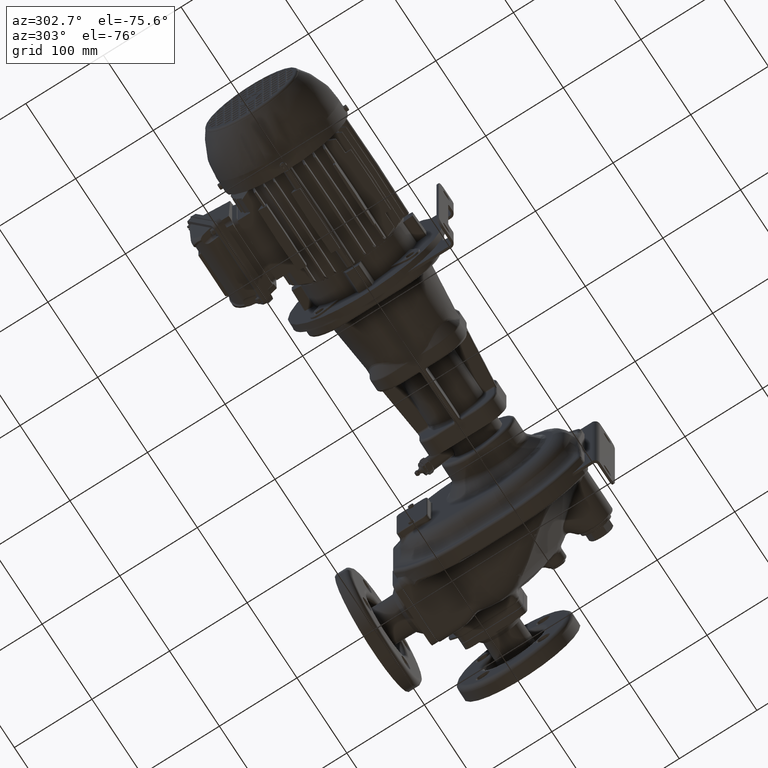
[diagram: clean part render]
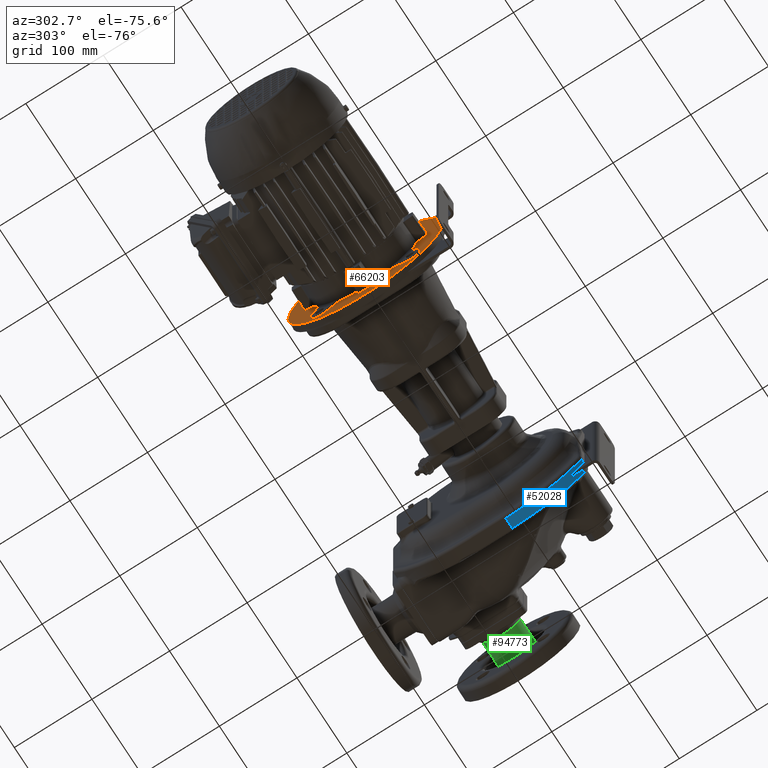
[diagram: same view with three faces highlighted in distinct colors, each labeled with its STEP entity id]
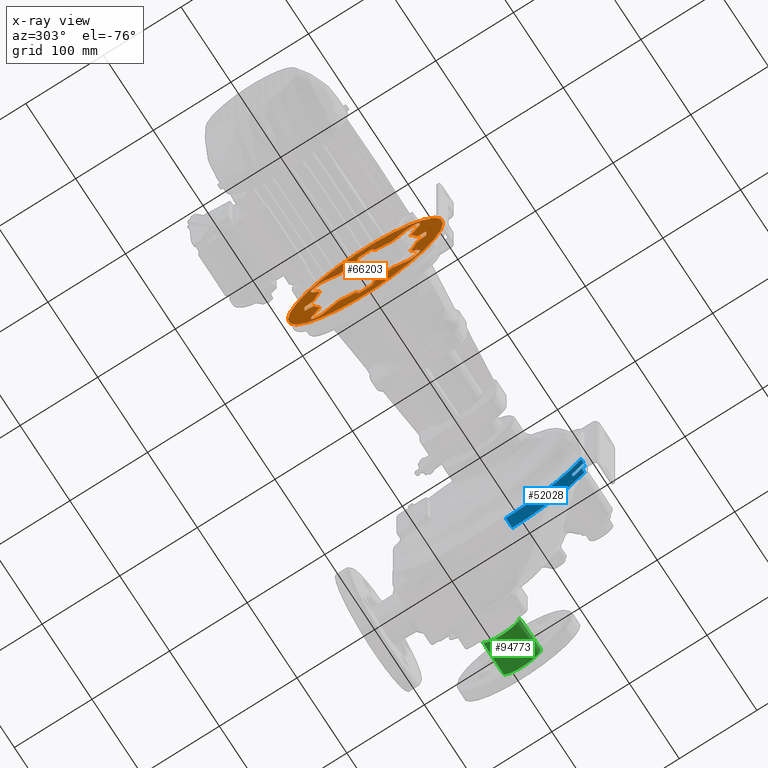
[diagram: x-ray of the same camera — body ghosted, the three highlighted faces saturated]
A machine part, auxiliary view with three faces highlighted in distinct colors.
The next image is the same camera in x-ray (body ghosted, the three faces saturated) — at least one of them is partly hidden behind the body in this view.
Their STEP definitions:

[orange] entity #66203 — the highlighted planar face has unit normal (1, 0, 0).
#13247=CARTESIAN_POINT('',(-3.143E2,1.1E2,0.E0));
#13248=DIRECTION('',(-1.E0,0.E0,0.E0));
#13249=DIRECTION('',(0.E0,1.E0,0.E0));
#13250=AXIS2_PLACEMENT_3D('',#13247,#13248,#13249);
#13252=CARTESIAN_POINT('',(-3.143E2,1.1E2,0.E0));
#13253=DIRECTION('',(-1.E0,0.E0,0.E0));
#13254=DIRECTION('',(0.E0,-1.E0,0.E0));
#13255=AXIS2_PLACEMENT_3D('',#13252,#13253,#13254);
#13257=DIRECTION('',(2.726481860478E-9,2.588190957483E-1,9.659258127186E-1));
#13258=VECTOR('',#13257,8.172830805807E0);
#13259=CARTESIAN_POINT('',(-3.143E2,1.191280612050E2,-7.647114600950E1));
#13260=LINE('',#13259,#13258);
#13261=DIRECTION('',(0.E0,1.E0,0.E0));
#13262=VECTOR('',#13261,1.246255344412E1);
#13263=CARTESIAN_POINT('',(-3.143E2,1.037687232779E2,-7.869392692158E1));
#13264=LINE('',#13263,#13262);
#13265=DIRECTION('',(-2.762342711464E-9,2.588190964110E-1,-9.659258125410E-1));
#13266=VECTOR('',#13265,8.172830805802E0);
#13267=CARTESIAN_POINT('',(-3.142999999774E2,9.875665411076E1,
-6.857679777264E1));
#13268=LINE('',#13267,#13266);
#13269=CARTESIAN_POINT('',(-3.143E2,1.1E2,0.E0));
#13270=DIRECTION('',(1.E0,0.E0,0.E0));
#13271=DIRECTION('',(0.E0,-5.039168477127E-1,-8.637521696594E-1));
#13272=AXIS2_PLACEMENT_3D('',#13269,#13270,#13271);
#13274=DIRECTION('',(-3.467432539896E-14,8.660254037844E-1,5.E-1));
#13275=VECTOR('',#13274,2.131157381400E1);
#13276=CARTESIAN_POINT('',(-3.143E2,5.766369055211E1,-6.872861429330E1));
#13277=LINE('',#13276,#13275);
#13278=DIRECTION('',(3.467432539896E-14,-5.E-1,-8.660254037844E-1));
#13279=VECTOR('',#13278,2.131157381400E1);
#13280=CARTESIAN_POINT('',(-3.143E2,5.192717261369E1,-3.387994513034E1));
#13281=LINE('',#13280,#13279);
#13282=CARTESIAN_POINT('',(-3.143E2,1.1E2,0.E0));
#13283=DIRECTION('',(1.E0,0.E0,0.E0));
#13284=DIRECTION('',(0.E0,-9.772557285621E-1,-2.120642378916E-1));
#13285=AXIS2_PLACEMENT_3D('',#13282,#13283,#13284);
#13287=DIRECTION('',(2.726481860478E-9,9.659258127186E-1,-2.588190957482E-1));
#13288=VECTOR('',#13287,8.172830805807E0);
#13289=CARTESIAN_POINT('',(-3.143E2,3.352885399050E1,-9.128061204961E0));
#13290=LINE('',#13289,#13288);
#13291=DIRECTION('',(0.E0,0.E0,-1.E0));
#13292=VECTOR('',#13291,1.246255344412E1);
#13293=CARTESIAN_POINT('',(-3.143E2,3.130607307842E1,6.231276722062E0));
#13294=LINE('',#13293,#13292);
#13295=DIRECTION('',(-2.762356621802E-9,-9.659258125410E-1,-2.588190964110E-1));
#13296=VECTOR('',#13295,8.172830805802E0);
#13297=CARTESIAN_POINT('',(-3.142999999774E2,4.142320222736E1,
1.124334588924E1));
#13298=LINE('',#13297,#13296);
#13299=CARTESIAN_POINT('',(-3.143E2,1.1E2,0.E0));
#13300=DIRECTION('',(1.E0,0.E0,0.E0));
#13301=DIRECTION('',(0.E0,-8.637521696594E-1,5.039168477127E-1));
#13302=AXIS2_PLACEMENT_3D('',#13299,#13300,#13301);
#13304=DIRECTION('',(-3.467432539896E-14,5.E-1,-8.660254037844E-1));
#13305=VECTOR('',#13304,2.131157381400E1);
#13306=CARTESIAN_POINT('',(-3.143E2,4.127138570670E1,5.233630944789E1));
#13307=LINE('',#13306,#13305);
#13308=DIRECTION('',(3.467432539896E-14,-8.660254037844E-1,5.E-1));
#13309=VECTOR('',#13308,2.131157381400E1);
#13310=CARTESIAN_POINT('',(-3.143E2,7.612005486966E1,5.807282738631E1));
#13311=LINE('',#13310,#13309);
#13312=CARTESIAN_POINT('',(-3.143E2,1.1E2,0.E0));
#13313=DIRECTION('',(1.E0,0.E0,0.E0));
#13314=DIRECTION('',(0.E0,-2.120642378916E-1,9.772557285621E-1));
#13315=AXIS2_PLACEMENT_3D('',#13312,#13313,#13314);
#13317=DIRECTION('',(2.908630779498E-9,-2.588190991145E-1,-9.659258118166E-1));
#13318=VECTOR('',#13317,8.172830805784E0);
#13319=CARTESIAN_POINT('',(-3.143E2,1.008719387950E2,7.647114600950E1));
#13320=LINE('',#13319,#13318);
#13321=DIRECTION('',(0.E0,-1.E0,0.E0));
#13322=VECTOR('',#13321,1.246255344412E1);
#13323=CARTESIAN_POINT('',(-3.143E2,1.162312767221E2,7.869392692158E1));
#13324=LINE('',#13323,#13322);
#13325=DIRECTION('',(-2.946863343088E-9,-2.588190998214E-1,9.659258116272E-1));
#13326=VECTOR('',#13325,8.172830805779E0);
#13327=CARTESIAN_POINT('',(-3.142999999759E2,1.212433459171E2,
6.857679778013E1));
#13328=LINE('',#13327,#13326);
#13329=CARTESIAN_POINT('',(-3.143E2,1.1E2,0.E0));
#13330=DIRECTION('',(1.E0,0.E0,0.E0));
#13331=DIRECTION('',(0.E0,5.039168477127E-1,8.637521696594E-1));
#13332=AXIS2_PLACEMENT_3D('',#13329,#13330,#13331);
#13334=DIRECTION('',(-3.467432539896E-14,-8.660254037844E-1,-5.E-1));
#13335=VECTOR('',#13334,2.131157381400E1);
#13336=CARTESIAN_POINT('',(-3.143E2,1.623363094479E2,6.872861429330E1));
#13337=LINE('',#13336,#13335);
#13338=CARTESIAN_POINT('',(-3.143E2,1.683363094479E2,5.833630944789E1));
#13339=DIRECTION('',(1.E0,0.E0,0.E0));
#13340=DIRECTION('',(0.E0,8.660254037844E-1,-5.E-1));
#13341=AXIS2_PLACEMENT_3D('',#13338,#13339,#13340);
#13343=DIRECTION('',(3.467432539896E-14,5.E-1,8.660254037844E-1));
#13344=VECTOR('',#13343,2.131157381400E1);
#13345=CARTESIAN_POINT('',(-3.143E2,1.680728273863E2,3.387994513034E1));
#13346=LINE('',#13345,#13344);
#13347=CARTESIAN_POINT('',(-3.143E2,1.1E2,0.E0));
#13348=DIRECTION('',(1.E0,0.E0,0.E0));
#13349=DIRECTION('',(0.E0,9.772557285621E-1,2.120642378916E-1));
#13350=AXIS2_PLACEMENT_3D('',#13347,#13348,#13349);
#13352=DIRECTION('',(2.908623824329E-9,-9.659258118166E-1,2.588190991145E-1));
#13353=VECTOR('',#13352,8.172830805784E0);
#13354=CARTESIAN_POINT('',(-3.143E2,1.864711460095E2,9.128061204961E0));
#13355=LINE('',#13354,#13353);
#13356=DIRECTION('',(0.E0,0.E0,1.E0));
#13357=VECTOR('',#13356,1.246255344412E1);
#13358=CARTESIAN_POINT('',(-3.143E2,1.886939269216E2,-6.231276722062E0));
#13359=LINE('',#13358,#13357);
#13360=DIRECTION('',(-2.946870298257E-9,9.659258116272E-1,2.588190998214E-1));
#13361=VECTOR('',#13360,8.172830805779E0);
#13362=CARTESIAN_POINT('',(-3.142999999759E2,1.785767977801E2,
-1.124334591711E1));
#13363=LINE('',#13362,#13361);
#13364=CARTESIAN_POINT('',(-3.143E2,1.1E2,0.E0));
#13365=DIRECTION('',(1.E0,0.E0,0.E0));
#13366=DIRECTION('',(0.E0,8.637521696594E-1,-5.039168477127E-1));
#13367=AXIS2_PLACEMENT_3D('',#13364,#13365,#13366);
#13369=DIRECTION('',(-3.467432539896E-14,-5.E-1,8.660254037844E-1));
#13370=VECTOR('',#13369,2.131157381400E1);
#13371=CARTESIAN_POINT('',(-3.143E2,1.787286142933E2,-5.233630944789E1));
#13372=LINE('',#13371,#13370);
#13373=CARTESIAN_POINT('',(-3.143E2,1.683363094479E2,-5.833630944789E1));
#13374=DIRECTION('',(1.E0,0.E0,0.E0));
#13375=DIRECTION('',(0.E0,1.E0,0.E0));
#13376=AXIS2_PLACEMENT_3D('',#13373,#13374,#13375);
#13378=CARTESIAN_POINT('',(-3.143E2,1.683363094479E2,-5.833630944789E1));
#13379=DIRECTION('',(1.E0,0.E0,0.E0));
#13380=DIRECTION('',(0.E0,-5.E-1,-8.660254037845E-1));
#13381=AXIS2_PLACEMENT_3D('',#13378,#13379,#13380);
#13383=DIRECTION('',(3.467432539896E-14,8.660254037844E-1,-5.E-1));
#13384=VECTOR('',#13383,2.131157381400E1);
#13385=CARTESIAN_POINT('',(-3.143E2,1.438799451303E2,-5.807282738631E1));
#13386=LINE('',#13385,#13384);
#13387=CARTESIAN_POINT('',(-3.143E2,1.1E2,0.E0));
#13388=DIRECTION('',(1.E0,0.E0,0.E0));
#13389=DIRECTION('',(0.E0,2.120642378916E-1,-9.772557285621E-1));
#13390=AXIS2_PLACEMENT_3D('',#13387,#13388,#13389);
#13400=CARTESIAN_POINT('',(-3.142999999141E2,1.242577580395E2,
-6.570403361648E1));
#13401=CARTESIAN_POINT('',(-3.142999999141E2,1.242006414080E2,
-6.571642791896E1));
#13402=CARTESIAN_POINT('',(-3.143000000398E2,1.240870784917E2,
-6.574368206670E1));
#13403=CARTESIAN_POINT('',(-3.142999999893E2,1.239185990177E2,
-6.579202191922E1));
#13404=CARTESIAN_POINT('',(-3.143000000029E2,1.237524312909E2,
-6.584768128402E1));
#13405=CARTESIAN_POINT('',(-3.142999999992E2,1.235888598415E2,
-6.591056542109E1));
#13406=CARTESIAN_POINT('',(-3.143000000002E2,1.234282064869E2,
-6.598055025540E1));
#13407=CARTESIAN_POINT('',(-3.142999999999E2,1.232707761141E2,
-6.605750241541E1));
#13408=CARTESIAN_POINT('',(-3.143E2,1.231168704967E2,-6.614127417698E1));
#13409=CARTESIAN_POINT('',(-3.143E2,1.229667837984E2,-6.623170519667E1));
#13410=CARTESIAN_POINT('',(-3.143E2,1.228208033780E2,-6.632862231941E1));
#13411=CARTESIAN_POINT('',(-3.143E2,1.226792116690E2,-6.643183772812E1));
#13412=CARTESIAN_POINT('',(-3.143E2,1.225422787106E2,-6.654115408964E1));
#13413=CARTESIAN_POINT('',(-3.143E2,1.224102664809E2,-6.665636202240E1));
#13414=CARTESIAN_POINT('',(-3.143E2,1.222834273787E2,-6.677724110355E1));
#13415=CARTESIAN_POINT('',(-3.143E2,1.221620040464E2,-6.690356009447E1));
#13416=CARTESIAN_POINT('',(-3.143E2,1.220462287942E2,-6.703507748948E1));
#13417=CARTESIAN_POINT('',(-3.143E2,1.219363233633E2,-6.717154168448E1));
#13418=CARTESIAN_POINT('',(-3.143E2,1.218324978487E2,-6.731269244222E1));
#13419=CARTESIAN_POINT('',(-3.143E2,1.217349534334E2,-6.745825669576E1));
#13420=CARTESIAN_POINT('',(-3.143E2,1.216438768894E2,-6.760795574572E1));
#13421=CARTESIAN_POINT('',(-3.143000000001E2,1.215594425506E2,
-6.776150348113E1));
#13422=CARTESIAN_POINT('',(-3.142999999998E2,1.214818124014E2,
-6.791860556039E1));
#13423=CARTESIAN_POINT('',(-3.143000000007E2,1.214111346439E2,
-6.807896393835E1));
#13424=CARTESIAN_POINT('',(-3.142999999972E2,1.213475475E2,-6.824226284922E1));
#13425=CARTESIAN_POINT('',(-3.143000000103E2,1.212911637273E2,
-6.840822371175E1));
#13426=CARTESIAN_POINT('',(-3.142999999777E2,1.212584726939E2,
-6.852034323261E1));
#13427=CARTESIAN_POINT('',(-3.142999999777E2,1.212433458838E2,
-6.857679777119E1));
#13462=CARTESIAN_POINT('',(-3.142999999141E2,4.429596638351E1,
-1.425775803951E1));
#13474=CARTESIAN_POINT('',(-3.143E2,5.192717261369E1,-3.387994513034E1));
#13476=CARTESIAN_POINT('',(-3.143E2,7.612005486966E1,-5.807282738631E1));
#13638=CARTESIAN_POINT('',(-3.143E2,1.864711460095E2,9.128061204961E0));
#13639=CARTESIAN_POINT('',(-3.143E2,1.865637618808E2,9.103244857030E0));
#13640=CARTESIAN_POINT('',(-3.143E2,1.867398706276E2,9.046611840194E0));
#13641=CARTESIAN_POINT('',(-3.143E2,1.869814553630E2,8.944337310981E0));
#13642=CARTESIAN_POINT('',(-3.143E2,1.872035578210E2,8.827113504552E0));
#13643=CARTESIAN_POINT('',(-3.143E2,1.874082946777E2,8.696564603562E0));
#13644=CARTESIAN_POINT('',(-3.143E2,1.875971307758E2,8.553814621358E0));
#13645=CARTESIAN_POINT('',(-3.143E2,1.878290290081E2,8.348224371363E0));
#13646=CARTESIAN_POINT('',(-3.143E2,1.880833786685E2,8.063978702568E0));
#13647=CARTESIAN_POINT('',(-3.143E2,1.882921083648E2,7.744727604093E0));
#13648=CARTESIAN_POINT('',(-3.143E2,1.884306736178E2,7.467520440271E0));
#13649=CARTESIAN_POINT('',(-3.143E2,1.885196851338E2,7.248172362113E0));
#13650=CARTESIAN_POINT('',(-3.143E2,1.885927958911E2,7.016623202741E0));
#13651=CARTESIAN_POINT('',(-3.143E2,1.886485410471E2,6.771748948807E0));
#13652=CARTESIAN_POINT('',(-3.143E2,1.886848039257E2,6.511925417658E0));
#13653=CARTESIAN_POINT('',(-3.143E2,1.886939269216E2,6.327159727585E0));
#13654=CARTESIAN_POINT('',(-3.143E2,1.886939269216E2,6.231276722062E0));
#13682=CARTESIAN_POINT('',(-3.142999999126E2,1.757040336447E2,
1.425775804565E1));
#13683=CARTESIAN_POINT('',(-3.142999999126E2,1.757164279474E2,
1.420064141313E1));
#13684=CARTESIAN_POINT('',(-3.143000000405E2,1.757436820542E2,
1.408707848644E1));
#13685=CARTESIAN_POINT('',(-3.142999999891E2,1.757920219232E2,
1.391859901687E1));
#13686=CARTESIAN_POINT('',(-3.143000000029E2,1.758476812836E2,
1.375243128917E1));
#13687=CARTESIAN_POINT('',(-3.142999999992E2,1.759105654219E2,
1.358885984021E1));
#13688=CARTESIAN_POINT('',(-3.143000000002E2,1.759805502559E2,
1.342820648568E1));
#13689=CARTESIAN_POINT('',(-3.142999999999E2,1.760575024159E2,
1.327077611308E1));
#13690=CARTESIAN_POINT('',(-3.143E2,1.761412741775E2,1.311687049589E1));
#13691=CARTESIAN_POINT('',(-3.143E2,1.762317051971E2,1.296678379773E1));
#13692=CARTESIAN_POINT('',(-3.143E2,1.763286223198E2,1.282080337751E1));
#13693=CARTESIAN_POINT('',(-3.143E2,1.764318377284E2,1.267921166861E1));
#13694=CARTESIAN_POINT('',(-3.143E2,1.765411540898E2,1.254227871038E1));
#13695=CARTESIAN_POINT('',(-3.143E2,1.766563620225E2,1.241026648084E1));
#13696=CARTESIAN_POINT('',(-3.143E2,1.767772411035E2,1.228342737873E1));
#13697=CARTESIAN_POINT('',(-3.143E2,1.769035600943E2,1.216200404658E1));
#13698=CARTESIAN_POINT('',(-3.143E2,1.770350774892E2,1.204622879442E1));
#13699=CARTESIAN_POINT('',(-3.143E2,1.771715416840E2,1.193632336366E1));
#13700=CARTESIAN_POINT('',(-3.143E2,1.773126924416E2,1.183249784916E1));
#13701=CARTESIAN_POINT('',(-3.143E2,1.774582566950E2,1.173495343394E1));
#13702=CARTESIAN_POINT('',(-3.143E2,1.776079557448E2,1.164387688995E1));
#13703=CARTESIAN_POINT('',(-3.143000000001E2,1.777615034800E2,
1.155944255116E1));
#13704=CARTESIAN_POINT('',(-3.142999999998E2,1.779186055592E2,
1.148181240227E1));
#13705=CARTESIAN_POINT('',(-3.143000000008E2,1.780789639366E2,
1.141113464362E1));
#13706=CARTESIAN_POINT('',(-3.142999999970E2,1.782422628486E2,
1.134754750403E1));
#13707=CARTESIAN_POINT('',(-3.143000000110E2,1.784082237060E2,
1.129116371525E1));
#13708=CARTESIAN_POINT('',(-3.142999999762E2,1.785203432390E2,
1.125847272163E1));
#13709=CARTESIAN_POINT('',(-3.142999999762E2,1.785767977786E2,
1.124334591133E1));
#13740=CARTESIAN_POINT('',(-3.143E2,1.886939269216E2,-6.231276722062E0));
#13741=CARTESIAN_POINT('',(-3.143E2,1.886939269216E2,-6.327159727585E0));
#13742=CARTESIAN_POINT('',(-3.143E2,1.886848039257E2,-6.511925417658E0));
#13743=CARTESIAN_POINT('',(-3.143E2,1.886485410471E2,-6.771748948807E0));
#13744=CARTESIAN_POINT('',(-3.143E2,1.885927958911E2,-7.016623202741E0));
#13745=CARTESIAN_POINT('',(-3.143E2,1.885196851338E2,-7.248172362113E0));
#13746=CARTESIAN_POINT('',(-3.143E2,1.884306736178E2,-7.467520440271E0));
#13747=CARTESIAN_POINT('',(-3.143E2,1.882921083648E2,-7.744727604093E0));
#13748=CARTESIAN_POINT('',(-3.143E2,1.880833786685E2,-8.063978702568E0));
#13749=CARTESIAN_POINT('',(-3.143E2,1.878290290081E2,-8.348224371364E0));
#13750=CARTESIAN_POINT('',(-3.143E2,1.875971307758E2,-8.553814621358E0));
#13751=CARTESIAN_POINT('',(-3.143E2,1.874082946777E2,-8.696564603562E0));
#13752=CARTESIAN_POINT('',(-3.143E2,1.872035578210E2,-8.827113504553E0));
#13753=CARTESIAN_POINT('',(-3.143E2,1.869814553630E2,-8.944337310982E0));
#13754=CARTESIAN_POINT('',(-3.143E2,1.867398706276E2,-9.046611840195E0));
#13755=CARTESIAN_POINT('',(-3.143E2,1.865637618808E2,-9.103244857030E0));
#13756=CARTESIAN_POINT('',(-3.143E2,1.864711460095E2,-9.128061204961E0));
#13813=CARTESIAN_POINT('',(-3.142999999759E2,1.785767977801E2,
-1.124334591711E1));
#13814=CARTESIAN_POINT('',(-3.142999999759E2,1.785203432406E2,
-1.125847272741E1));
#13815=CARTESIAN_POINT('',(-3.143000000112E2,1.784082237052E2,
-1.129116371259E1));
#13816=CARTESIAN_POINT('',(-3.142999999970E2,1.782422628484E2,
-1.134754750490E1));
#13817=CARTESIAN_POINT('',(-3.143000000008E2,1.780789639358E2,
-1.141113464372E1));
#13818=CARTESIAN_POINT('',(-3.142999999998E2,1.779186055584E2,
-1.148181240267E1));
#13819=CARTESIAN_POINT('',(-3.143000000001E2,1.777615034793E2,
-1.155944255148E1));
#13820=CARTESIAN_POINT('',(-3.143E2,1.776079557444E2,-1.164387689019E1));
#13821=CARTESIAN_POINT('',(-3.143E2,1.774582566950E2,-1.173495343392E1));
#13822=CARTESIAN_POINT('',(-3.143E2,1.773126924381E2,-1.183249785149E1));
#13823=CARTESIAN_POINT('',(-3.143E2,1.771715416742E2,-1.193632337106E1));
#13824=CARTESIAN_POINT('',(-3.143E2,1.770350774765E2,-1.204622880504E1));
#13825=CARTESIAN_POINT('',(-3.143E2,1.769035600807E2,-1.216200405911E1));
#13826=CARTESIAN_POINT('',(-3.143E2,1.767772410904E2,-1.228342739187E1));
#13827=CARTESIAN_POINT('',(-3.143E2,1.766563620100E2,-1.241026649453E1));
#13828=CARTESIAN_POINT('',(-3.143E2,1.765411540780E2,-1.254227872460E1));
#13829=CARTESIAN_POINT('',(-3.143E2,1.764318377184E2,-1.267921168177E1));
#13830=CARTESIAN_POINT('',(-3.143E2,1.763286223128E2,-1.282080338762E1));
#13831=CARTESIAN_POINT('',(-3.143E2,1.762317051949E2,-1.296678380132E1));
#13832=CARTESIAN_POINT('',(-3.143E2,1.761412741775E2,-1.311687049588E1));
#13833=CARTESIAN_POINT('',(-3.142999999999E2,1.760575024157E2,
-1.327077611345E1));
#13834=CARTESIAN_POINT('',(-3.143000000002E2,1.759805502556E2,
-1.342820648632E1));
#13835=CARTESIAN_POINT('',(-3.142999999992E2,1.759105654215E2,
-1.358885984094E1));
#13836=CARTESIAN_POINT('',(-3.143000000029E2,1.758476812836E2,
-1.375243128991E1));
#13837=CARTESIAN_POINT('',(-3.142999999892E2,1.757920219224E2,
-1.391859901712E1));
#13838=CARTESIAN_POINT('',(-3.143000000404E2,1.757436820569E2,
-1.408707848707E1));
#13839=CARTESIAN_POINT('',(-3.142999999130E2,1.757164279415E2,
-1.420064141185E1));
#13840=CARTESIAN_POINT('',(-3.142999999130E2,1.757040336388E2,
-1.425775804437E1));
#13925=CARTESIAN_POINT('',(-3.142999999759E2,1.212433459171E2,
6.857679778013E1));
#13926=CARTESIAN_POINT('',(-3.142999999759E2,1.212584727274E2,
6.852034324060E1));
#13927=CARTESIAN_POINT('',(-3.143000000112E2,1.212911637126E2,
6.840822370522E1));
#13928=CARTESIAN_POINT('',(-3.142999999970E2,1.213475475049E2,
6.824226284836E1));
#13929=CARTESIAN_POINT('',(-3.143000000008E2,1.214111346437E2,
6.807896393583E1));
#13930=CARTESIAN_POINT('',(-3.142999999998E2,1.214818124027E2,
6.791860555843E1));
#13931=CARTESIAN_POINT('',(-3.143000000001E2,1.215594425515E2,
6.776150347935E1));
#13932=CARTESIAN_POINT('',(-3.143E2,1.216438768902E2,6.760795574440E1));
#13933=CARTESIAN_POINT('',(-3.143E2,1.217349534339E2,6.745825669498E1));
#13934=CARTESIAN_POINT('',(-3.143E2,1.218324978515E2,6.731269243810E1));
#13935=CARTESIAN_POINT('',(-3.143E2,1.219363233711E2,6.717154167424E1));
#13936=CARTESIAN_POINT('',(-3.143E2,1.220462288050E2,6.703507747651E1));
#13937=CARTESIAN_POINT('',(-3.143E2,1.221620040591E2,6.690356008065E1));
#13938=CARTESIAN_POINT('',(-3.143E2,1.222834273919E2,6.677724109043E1));
#13939=CARTESIAN_POINT('',(-3.143E2,1.224102664945E2,6.665636200998E1));
#13940=CARTESIAN_POINT('',(-3.143E2,1.225422787246E2,6.654115407796E1));
#13941=CARTESIAN_POINT('',(-3.143E2,1.226792116818E2,6.643183771840E1));
#13942=CARTESIAN_POINT('',(-3.143E2,1.228208033876E2,6.632862231285E1));
#13943=CARTESIAN_POINT('',(-3.143E2,1.229667838013E2,6.623170519495E1));
#13944=CARTESIAN_POINT('',(-3.143E2,1.231168704959E2,6.614127417748E1));
#13945=CARTESIAN_POINT('',(-3.142999999999E2,1.232707761134E2,
6.605750241573E1));
#13946=CARTESIAN_POINT('',(-3.143000000002E2,1.234282064863E2,
6.598055025559E1));
#13947=CARTESIAN_POINT('',(-3.142999999992E2,1.235888598409E2,
6.591056542154E1));
#13948=CARTESIAN_POINT('',(-3.143000000029E2,1.237524312899E2,
6.584768128359E1));
#13949=CARTESIAN_POINT('',(-3.142999999892E2,1.239185990171E2,
6.579202192238E1));
#13950=CARTESIAN_POINT('',(-3.143000000404E2,1.240870784871E2,
6.574368205694E1));
#13951=CARTESIAN_POINT('',(-3.142999999130E2,1.242006414118E2,
6.571642794152E1));
#13952=CARTESIAN_POINT('',(-3.142999999130E2,1.242577580444E2,
6.570403363883E1));
#13979=CARTESIAN_POINT('',(-3.143E2,1.008719387950E2,7.647114600950E1));
#13980=CARTESIAN_POINT('',(-3.143E2,1.008967551430E2,7.656376188083E1));
#13981=CARTESIAN_POINT('',(-3.143E2,1.009533881598E2,7.673987062760E1));
#13982=CARTESIAN_POINT('',(-3.143E2,1.010556626890E2,7.698145536300E1));
#13983=CARTESIAN_POINT('',(-3.143E2,1.011728864954E2,7.720355782102E1));
#13984=CARTESIAN_POINT('',(-3.143E2,1.013034353964E2,7.740829467772E1));
#13985=CARTESIAN_POINT('',(-3.143E2,1.014461853786E2,7.759713077581E1));
#13986=CARTESIAN_POINT('',(-3.143E2,1.016517756286E2,7.782902900809E1));
#13987=CARTESIAN_POINT('',(-3.143E2,1.019360212974E2,7.808337866851E1));
#13988=CARTESIAN_POINT('',(-3.143E2,1.022552723959E2,7.829210836478E1));
#13989=CARTESIAN_POINT('',(-3.143E2,1.025324795597E2,7.843067361784E1));
#13990=CARTESIAN_POINT('',(-3.143E2,1.027518276379E2,7.851968513377E1));
#13991=CARTESIAN_POINT('',(-3.143E2,1.029833767973E2,7.859279589108E1));
#13992=CARTESIAN_POINT('',(-3.143E2,1.032282510512E2,7.864854104706E1));
#13993=CARTESIAN_POINT('',(-3.143E2,1.034880745823E2,7.868480392567E1));
#13994=CARTESIAN_POINT('',(-3.143E2,1.036728402724E2,7.869392692158E1));
#13995=CARTESIAN_POINT('',(-3.143E2,1.037687232779E2,7.869392692158E1));
#14023=CARTESIAN_POINT('',(-3.142999999126E2,9.574224195435E1,
6.570403364468E1));
#14024=CARTESIAN_POINT('',(-3.142999999126E2,9.579935858687E1,
6.571642794737E1));
#14025=CARTESIAN_POINT('',(-3.143000000405E2,9.591292151356E1,
6.574368205423E1));
#14026=CARTESIAN_POINT('',(-3.142999999891E2,9.608140098313E1,
6.579202192323E1));
#14027=CARTESIAN_POINT('',(-3.143000000029E2,9.624756871083E1,
6.584768128365E1));
#14028=CARTESIAN_POINT('',(-3.142999999992E2,9.641114015979E1,
6.591056542190E1));
#14029=CARTESIAN_POINT('',(-3.143000000002E2,9.657179351432E1,
6.598055025587E1));
#14030=CARTESIAN_POINT('',(-3.142999999999E2,9.672922388692E1,
6.605750241594E1));
#14031=CARTESIAN_POINT('',(-3.143E2,9.688312950411E1,6.614127417745E1));
#14032=CARTESIAN_POINT('',(-3.143E2,9.703321620227E1,6.623170519709E1));
#14033=CARTESIAN_POINT('',(-3.143E2,9.717919662248E1,6.632862231976E1));
#14034=CARTESIAN_POINT('',(-3.143E2,9.732078833138E1,6.643183772839E1));
#14035=CARTESIAN_POINT('',(-3.143E2,9.745772128962E1,6.654115408982E1));
#14036=CARTESIAN_POINT('',(-3.143E2,9.758973351916E1,6.665636202247E1));
#14037=CARTESIAN_POINT('',(-3.143E2,9.771657262127E1,6.677724110350E1));
#14038=CARTESIAN_POINT('',(-3.143E2,9.783799595342E1,6.690356009429E1));
#14039=CARTESIAN_POINT('',(-3.143E2,9.795377120557E1,6.703507748917E1));
#14040=CARTESIAN_POINT('',(-3.143E2,9.806367663634E1,6.717154168402E1));
#14041=CARTESIAN_POINT('',(-3.143E2,9.816750215084E1,6.731269244160E1));
#14042=CARTESIAN_POINT('',(-3.143E2,9.826504656606E1,6.745825669499E1));
#14043=CARTESIAN_POINT('',(-3.143E2,9.835612311004E1,6.760795574478E1));
#14044=CARTESIAN_POINT('',(-3.143000000001E2,9.844055744884E1,
6.776150347999E1));
#14045=CARTESIAN_POINT('',(-3.142999999998E2,9.851818759773E1,
6.791860555916E1));
#14046=CARTESIAN_POINT('',(-3.143000000008E2,9.858886535638E1,
6.807896393658E1));
#14047=CARTESIAN_POINT('',(-3.142999999970E2,9.865245249597E1,
6.824226284860E1));
#14048=CARTESIAN_POINT('',(-3.143000000110E2,9.870883628474E1,
6.840822370600E1));
#14049=CARTESIAN_POINT('',(-3.142999999762E2,9.874152727837E1,
6.852034323905E1));
#14050=CARTESIAN_POINT('',(-3.142999999762E2,9.875665408867E1,
6.857679777858E1));
#14081=CARTESIAN_POINT('',(-3.143E2,1.162312767221E2,7.869392692158E1));
#14082=CARTESIAN_POINT('',(-3.143E2,1.163271597276E2,7.869392692158E1));
#14083=CARTESIAN_POINT('',(-3.143E2,1.165119254177E2,7.868480392567E1));
#14084=CARTESIAN_POINT('',(-3.143E2,1.167717489488E2,7.864854104706E1));
#14085=CARTESIAN_POINT('',(-3.143E2,1.170166232027E2,7.859279589108E1));
#14086=CARTESIAN_POINT('',(-3.143E2,1.172481723621E2,7.851968513377E1));
#14087=CARTESIAN_POINT('',(-3.143E2,1.174675204403E2,7.843067361784E1));
#14088=CARTESIAN_POINT('',(-3.143E2,1.177447276041E2,7.829210836478E1));
#14089=CARTESIAN_POINT('',(-3.143E2,1.180639787026E2,7.808337866851E1));
#14090=CARTESIAN_POINT('',(-3.143E2,1.183482243714E2,7.782902900809E1));
#14091=CARTESIAN_POINT('',(-3.143E2,1.185538146214E2,7.759713077581E1));
#14092=CARTESIAN_POINT('',(-3.143E2,1.186965646036E2,7.740829467772E1));
#14093=CARTESIAN_POINT('',(-3.143E2,1.188271135046E2,7.720355782102E1));
#14094=CARTESIAN_POINT('',(-3.143E2,1.189443373110E2,7.698145536300E1));
#14095=CARTESIAN_POINT('',(-3.143E2,1.190466118402E2,7.673987062760E1));
#14096=CARTESIAN_POINT('',(-3.143E2,1.191032448570E2,7.656376188083E1));
#14097=CARTESIAN_POINT('',(-3.143E2,1.191280612050E2,7.647114600950E1));
#14125=CARTESIAN_POINT('',(-3.143E2,5.166369055211E1,5.833630944789E1));
#14126=DIRECTION('',(1.E0,0.E0,0.E0));
#14127=DIRECTION('',(0.E0,4.999999999998E-1,8.660254037845E-1));
#14128=AXIS2_PLACEMENT_3D('',#14125,#14126,#14127);
#14213=CARTESIAN_POINT('',(-3.142999999774E2,4.142320222736E1,
1.124334588924E1));
#14214=CARTESIAN_POINT('',(-3.142999999774E2,4.147965676592E1,
1.125847269928E1));
#14215=CARTESIAN_POINT('',(-3.143000000105E2,4.159177628895E1,
1.129116372479E1));
#14216=CARTESIAN_POINT('',(-3.142999999972E2,4.175773715099E1,
1.134754750085E1));
#14217=CARTESIAN_POINT('',(-3.143000000008E2,4.192103606238E1,
1.141113464401E1));
#14218=CARTESIAN_POINT('',(-3.142999999998E2,4.208139444032E1,
1.148181240181E1));
#14219=CARTESIAN_POINT('',(-3.143000000001E2,4.223849651949E1,
1.155944255095E1));
#14220=CARTESIAN_POINT('',(-3.143E2,4.239204425464E1,1.164387688961E1));
#14221=CARTESIAN_POINT('',(-3.143E2,4.254174330422E1,1.173495343341E1));
#14222=CARTESIAN_POINT('',(-3.143E2,4.268730756126E1,1.183249785104E1));
#14223=CARTESIAN_POINT('',(-3.143E2,4.282845832527E1,1.193632337069E1));
#14224=CARTESIAN_POINT('',(-3.143E2,4.296492252316E1,1.204622880475E1));
#14225=CARTESIAN_POINT('',(-3.143E2,4.309643991915E1,1.216200405893E1));
#14226=CARTESIAN_POINT('',(-3.143E2,4.322275890950E1,1.228342739180E1));
#14227=CARTESIAN_POINT('',(-3.143E2,4.334363799007E1,1.241026649458E1));
#14228=CARTESIAN_POINT('',(-3.143E2,4.345884592219E1,1.254227872478E1));
#14229=CARTESIAN_POINT('',(-3.143E2,4.356816228184E1,1.267921168209E1));
#14230=CARTESIAN_POINT('',(-3.143E2,4.367137768748E1,1.282080338809E1));
#14231=CARTESIAN_POINT('',(-3.143E2,4.376829480546E1,1.296678380195E1));
#14232=CARTESIAN_POINT('',(-3.143E2,4.385872582297E1,1.311687049667E1));
#14233=CARTESIAN_POINT('',(-3.142999999999E2,4.394249758479E1,
1.327077611441E1));
#14234=CARTESIAN_POINT('',(-3.143000000002E2,4.401944974487E1,
1.342820648748E1));
#14235=CARTESIAN_POINT('',(-3.142999999992E2,4.408943457925E1,
1.358885984220E1));
#14236=CARTESIAN_POINT('',(-3.143000000029E2,4.415231871603E1,
1.375243129165E1));
#14237=CARTESIAN_POINT('',(-3.142999999894E2,4.420797808158E1,
1.391859901794E1));
#14238=CARTESIAN_POINT('',(-3.143000000397E2,4.425631793075E1,
1.408707849223E1));
#14239=CARTESIAN_POINT('',(-3.142999999144E2,4.428357208652E1,
1.420064140676E1));
#14240=CARTESIAN_POINT('',(-3.142999999144E2,4.429596638900E1,
1.425775803831E1));
#14272=CARTESIAN_POINT('',(-3.143E2,3.352885399050E1,-9.128061204961E0));
#14273=CARTESIAN_POINT('',(-3.143E2,3.343623811917E1,-9.103244857030E0));
#14274=CARTESIAN_POINT('',(-3.143E2,3.326012937240E1,-9.046611840195E0));
#14275=CARTESIAN_POINT('',(-3.143E2,3.301854463700E1,-8.944337310982E0));
#14276=CARTESIAN_POINT('',(-3.143E2,3.279644217898E1,-8.827113504553E0));
#14277=CARTESIAN_POINT('',(-3.143E2,3.259170532228E1,-8.696564603562E0));
#14278=CARTESIAN_POINT('',(-3.143E2,3.240286922419E1,-8.553814621358E0));
#14279=CARTESIAN_POINT('',(-3.143E2,3.217097099191E1,-8.348224371364E0));
#14280=CARTESIAN_POINT('',(-3.143E2,3.191662133149E1,-8.063978702568E0));
#14281=CARTESIAN_POINT('',(-3.143E2,3.170789163522E1,-7.744727604093E0));
#14282=CARTESIAN_POINT('',(-3.143E2,3.156932638216E1,-7.467520440271E0));
#14283=CARTESIAN_POINT('',(-3.143E2,3.148031486623E1,-7.248172362113E0));
#14284=CARTESIAN_POINT('',(-3.143E2,3.140720410892E1,-7.016623202741E0));
#14285=CARTESIAN_POINT('',(-3.143E2,3.135145895294E1,-6.771748948807E0));
#14286=CARTESIAN_POINT('',(-3.143E2,3.131519607433E1,-6.511925417658E0));
#14287=CARTESIAN_POINT('',(-3.143E2,3.130607307842E1,-6.327159727585E0));
#14288=CARTESIAN_POINT('',(-3.143E2,3.130607307842E1,-6.231276722062E0));
#14316=CARTESIAN_POINT('',(-3.142999999141E2,4.429596638351E1,
-1.425775803951E1));
#14317=CARTESIAN_POINT('',(-3.142999999141E2,4.428357208104E1,
-1.420064140798E1));
#14318=CARTESIAN_POINT('',(-3.143000000398E2,4.425631793330E1,
-1.408707849167E1));
#14319=CARTESIAN_POINT('',(-3.142999999893E2,4.420797808078E1,
-1.391859901770E1));
#14320=CARTESIAN_POINT('',(-3.143000000029E2,4.415231871598E1,
-1.375243129094E1));
#14321=CARTESIAN_POINT('',(-3.142999999992E2,4.408943457891E1,
-1.358885984149E1));
#14322=CARTESIAN_POINT('',(-3.143000000002E2,4.401944974460E1,
-1.342820648686E1));
#14323=CARTESIAN_POINT('',(-3.142999999999E2,4.394249758459E1,
-1.327077611406E1));
#14324=CARTESIAN_POINT('',(-3.143E2,4.385872582302E1,-1.311687049671E1));
#14325=CARTESIAN_POINT('',(-3.143E2,4.376829480332E1,-1.296678379838E1));
#14326=CARTESIAN_POINT('',(-3.143E2,4.367137768058E1,-1.282080337801E1));
#14327=CARTESIAN_POINT('',(-3.143E2,4.356816227188E1,-1.267921166896E1));
#14328=CARTESIAN_POINT('',(-3.143E2,4.345884591036E1,-1.254227871059E1));
#14329=CARTESIAN_POINT('',(-3.143E2,4.334363797759E1,-1.241026648091E1));
#14330=CARTESIAN_POINT('',(-3.143E2,4.322275889645E1,-1.228342737868E1));
#14331=CARTESIAN_POINT('',(-3.143E2,4.309643990553E1,-1.216200404642E1));
#14332=CARTESIAN_POINT('',(-3.143E2,4.296492251051E1,-1.204622879416E1));
#14333=CARTESIAN_POINT('',(-3.143E2,4.282845831552E1,-1.193632336330E1));
#14334=CARTESIAN_POINT('',(-3.143E2,4.268730755778E1,-1.183249784872E1));
#14335=CARTESIAN_POINT('',(-3.143E2,4.254174330424E1,-1.173495343345E1));
#14336=CARTESIAN_POINT('',(-3.143E2,4.239204425428E1,-1.164387688939E1));
#14337=CARTESIAN_POINT('',(-3.143000000001E2,4.223849651887E1,
-1.155944255064E1));
#14338=CARTESIAN_POINT('',(-3.142999999998E2,4.208139443961E1,
-1.148181240142E1));
#14339=CARTESIAN_POINT('',(-3.143000000007E2,4.192103606165E1,
-1.141113464391E1));
#14340=CARTESIAN_POINT('',(-3.142999999972E2,4.175773715077E1,
-1.134754750004E1));
#14341=CARTESIAN_POINT('',(-3.143000000103E2,4.159177628825E1,
-1.129116372730E1));
#14342=CARTESIAN_POINT('',(-3.142999999777E2,4.147965676738E1,
-1.125847269387E1));
#14343=CARTESIAN_POINT('',(-3.142999999777E2,4.142320222881E1,
-1.124334588382E1));
#14374=CARTESIAN_POINT('',(-3.143E2,3.130607307842E1,6.231276722062E0));
#14375=CARTESIAN_POINT('',(-3.143E2,3.130607307842E1,6.327159727585E0));
#14376=CARTESIAN_POINT('',(-3.143E2,3.131519607433E1,6.511925417658E0));
#14377=CARTESIAN_POINT('',(-3.143E2,3.135145895294E1,6.771748948807E0));
#14378=CARTESIAN_POINT('',(-3.143E2,3.140720410892E1,7.016623202741E0));
#14379=CARTESIAN_POINT('',(-3.143E2,3.148031486623E1,7.248172362113E0));
#14380=CARTESIAN_POINT('',(-3.143E2,3.156932638216E1,7.467520440271E0));
#14381=CARTESIAN_POINT('',(-3.143E2,3.170789163522E1,7.744727604093E0));
#14382=CARTESIAN_POINT('',(-3.143E2,3.191662133149E1,8.063978702568E0));
#14383=CARTESIAN_POINT('',(-3.143E2,3.217097099191E1,8.348224371363E0));
#14384=CARTESIAN_POINT('',(-3.143E2,3.240286922419E1,8.553814621358E0));
#14385=CARTESIAN_POINT('',(-3.143E2,3.259170532228E1,8.696564603562E0));
#14386=CARTESIAN_POINT('',(-3.143E2,3.279644217898E1,8.827113504552E0));
#14387=CARTESIAN_POINT('',(-3.143E2,3.301854463700E1,8.944337310981E0));
#14388=CARTESIAN_POINT('',(-3.143E2,3.326012937240E1,9.046611840194E0));
#14389=CARTESIAN_POINT('',(-3.143E2,3.343623811917E1,9.103244857030E0));
#14390=CARTESIAN_POINT('',(-3.143E2,3.352885399050E1,9.128061204961E0));
#32062=CARTESIAN_POINT('',(-3.143E2,5.166369055211E1,-5.833630944789E1));
#32063=DIRECTION('',(1.E0,0.E0,0.E0));
#32064=DIRECTION('',(0.E0,-8.660254037844E-1,5.000000000001E-1));
#32065=AXIS2_PLACEMENT_3D('',#32062,#32063,#32064);
#32141=CARTESIAN_POINT('',(-3.142999999774E2,9.875665411076E1,
-6.857679777264E1));
#32142=CARTESIAN_POINT('',(-3.142999999774E2,9.874152730072E1,
-6.852034323408E1));
#32143=CARTESIAN_POINT('',(-3.143000000105E2,9.870883627521E1,
-6.840822371105E1));
#32144=CARTESIAN_POINT('',(-3.142999999972E2,9.865245249915E1,
-6.824226284901E1));
#32145=CARTESIAN_POINT('',(-3.143000000008E2,9.858886535599E1,
-6.807896393762E1));
#32146=CARTESIAN_POINT('',(-3.142999999998E2,9.851818759819E1,
-6.791860555968E1));
#32147=CARTESIAN_POINT('',(-3.143000000001E2,9.844055744905E1,
-6.776150348051E1));
#32148=CARTESIAN_POINT('',(-3.143E2,9.835612311039E1,-6.760795574536E1));
#32149=CARTESIAN_POINT('',(-3.143E2,9.826504656659E1,-6.745825669578E1));
#32150=CARTESIAN_POINT('',(-3.143E2,9.816750214896E1,-6.731269243874E1));
#32151=CARTESIAN_POINT('',(-3.143E2,9.806367662931E1,-6.717154167473E1));
#32152=CARTESIAN_POINT('',(-3.143E2,9.795377119525E1,-6.703507747684E1));
#32153=CARTESIAN_POINT('',(-3.143E2,9.783799594107E1,-6.690356008085E1));
#32154=CARTESIAN_POINT('',(-3.143E2,9.771657260820E1,-6.677724109049E1));
#32155=CARTESIAN_POINT('',(-3.143E2,9.758973350542E1,-6.665636200993E1));
#32156=CARTESIAN_POINT('',(-3.143E2,9.745772127521E1,-6.654115407781E1));
#32157=CARTESIAN_POINT('',(-3.143E2,9.732078831791E1,-6.643183771815E1));
#32158=CARTESIAN_POINT('',(-3.143E2,9.717919661190E1,-6.632862231252E1));
#32159=CARTESIAN_POINT('',(-3.143E2,9.703321619805E1,-6.623170519454E1));
#32160=CARTESIAN_POINT('',(-3.143E2,9.688312950333E1,-6.614127417703E1));
#32161=CARTESIAN_POINT('',(-3.142999999999E2,9.672922388559E1,
-6.605750241521E1));
#32162=CARTESIAN_POINT('',(-3.143000000002E2,9.657179351252E1,
-6.598055025513E1));
#32163=CARTESIAN_POINT('',(-3.142999999992E2,9.641114015779E1,
-6.591056542074E1));
#32164=CARTESIAN_POINT('',(-3.143000000029E2,9.624756870834E1,
-6.584768128397E1));
#32165=CARTESIAN_POINT('',(-3.142999999894E2,9.608140098206E1,
-6.579202191842E1));
#32166=CARTESIAN_POINT('',(-3.143000000397E2,9.591292150777E1,
-6.574368206925E1));
#32167=CARTESIAN_POINT('',(-3.142999999144E2,9.579935859324E1,
-6.571642791348E1));
#32168=CARTESIAN_POINT('',(-3.142999999144E2,9.574224196169E1,
-6.570403361100E1));
#32195=CARTESIAN_POINT('',(-3.143E2,1.191280612050E2,-7.647114600950E1));
#32196=CARTESIAN_POINT('',(-3.143E2,1.191032448570E2,-7.656376188083E1));
#32197=CARTESIAN_POINT('',(-3.143E2,1.190466118402E2,-7.673987062760E1));
#32198=CARTESIAN_POINT('',(-3.143E2,1.189443373110E2,-7.698145536300E1));
#32199=CARTESIAN_POINT('',(-3.143E2,1.188271135046E2,-7.720355782102E1));
#32200=CARTESIAN_POINT('',(-3.143E2,1.186965646036E2,-7.740829467772E1));
#32201=CARTESIAN_POINT('',(-3.143E2,1.185538146214E2,-7.759713077581E1));
#32202=CARTESIAN_POINT('',(-3.143E2,1.183482243714E2,-7.782902900809E1));
#32203=CARTESIAN_POINT('',(-3.143E2,1.180639787026E2,-7.808337866851E1));
#32204=CARTESIAN_POINT('',(-3.143E2,1.177447276041E2,-7.829210836478E1));
#32205=CARTESIAN_POINT('',(-3.143E2,1.174675204403E2,-7.843067361784E1));
#32206=CARTESIAN_POINT('',(-3.143E2,1.172481723621E2,-7.851968513377E1));
#32207=CARTESIAN_POINT('',(-3.143E2,1.170166232027E2,-7.859279589108E1));
#32208=CARTESIAN_POINT('',(-3.143E2,1.167717489488E2,-7.864854104706E1));
#32209=CARTESIAN_POINT('',(-3.143E2,1.165119254177E2,-7.868480392567E1));
#32210=CARTESIAN_POINT('',(-3.143E2,1.163271597276E2,-7.869392692158E1));
#32211=CARTESIAN_POINT('',(-3.143E2,1.162312767221E2,-7.869392692158E1));
#32231=CARTESIAN_POINT('',(-3.143E2,1.037687232779E2,-7.869392692158E1));
#32232=CARTESIAN_POINT('',(-3.143E2,1.036728402724E2,-7.869392692158E1));
#32233=CARTESIAN_POINT('',(-3.143E2,1.034880745823E2,-7.868480392567E1));
#32234=CARTESIAN_POINT('',(-3.143E2,1.032282510512E2,-7.864854104706E1));
#32235=CARTESIAN_POINT('',(-3.143E2,1.029833767973E2,-7.859279589108E1));
#32236=CARTESIAN_POINT('',(-3.143E2,1.027518276379E2,-7.851968513377E1));
#32237=CARTESIAN_POINT('',(-3.143E2,1.025324795597E2,-7.843067361784E1));
#32238=CARTESIAN_POINT('',(-3.143E2,1.022552723959E2,-7.829210836478E1));
#32239=CARTESIAN_POINT('',(-3.143E2,1.019360212974E2,-7.808337866851E1));
#32240=CARTESIAN_POINT('',(-3.143E2,1.016517756286E2,-7.782902900809E1));
#32241=CARTESIAN_POINT('',(-3.143E2,1.014461853786E2,-7.759713077581E1));
#32242=CARTESIAN_POINT('',(-3.143E2,1.013034353964E2,-7.740829467772E1));
#32243=CARTESIAN_POINT('',(-3.143E2,1.011728864954E2,-7.720355782102E1));
#32244=CARTESIAN_POINT('',(-3.143E2,1.010556626890E2,-7.698145536300E1));
#32245=CARTESIAN_POINT('',(-3.143E2,1.009533881598E2,-7.673987062760E1));
#32246=CARTESIAN_POINT('',(-3.143E2,1.008967551430E2,-7.656376188083E1));
#32247=CARTESIAN_POINT('',(-3.143E2,1.008719387950E2,-7.647114600950E1));
#45434=CARTESIAN_POINT('',(-3.143E2,5.766369055211E1,-6.872861429330E1));
#45435=VERTEX_POINT('',#45434);
#45452=CARTESIAN_POINT('',(-3.143E2,1.191280612050E2,-7.647114600950E1));
#45453=CARTESIAN_POINT('',(-3.142999999777E2,1.212433458838E2,
-6.857679777119E1));
#45454=VERTEX_POINT('',#45452);
#45455=VERTEX_POINT('',#45453);
#45456=VERTEX_POINT('',#13979);
#45457=VERTEX_POINT('',#13995);
#45458=CARTESIAN_POINT('',(-3.143E2,1.242577585498E2,-6.570403552149E1));
#45459=CARTESIAN_POINT('',(-3.143E2,1.438799451303E2,-5.807282738631E1));
#45460=VERTEX_POINT('',#45458);
#45461=VERTEX_POINT('',#45459);
#45462=CARTESIAN_POINT('',(-3.142999999774E2,4.142320222736E1,
1.124334588924E1));
#45463=CARTESIAN_POINT('',(-3.143E2,3.352885399050E1,9.128061204961E0));
#45464=VERTEX_POINT('',#45462);
#45465=VERTEX_POINT('',#45463);
#45471=CARTESIAN_POINT('',(-3.143E2,1.680728273863E2,-3.387994513034E1));
#45472=CARTESIAN_POINT('',(-3.143E2,1.757040355215E2,-1.425775854982E1));
#45473=VERTEX_POINT('',#45471);
#45474=VERTEX_POINT('',#45472);
#45475=CARTESIAN_POINT('',(-3.143E2,1.886939269216E2,-6.231276722062E0));
#45476=CARTESIAN_POINT('',(-3.143E2,1.886939269216E2,6.231276722062E0));
#45477=VERTEX_POINT('',#45475);
#45478=VERTEX_POINT('',#45476);
#45483=CARTESIAN_POINT('',(-3.142999999759E2,1.212433459171E2,
6.857679778013E1));
#45484=CARTESIAN_POINT('',(-3.143E2,1.191280612050E2,7.647114600950E1));
#45485=VERTEX_POINT('',#45483);
#45486=VERTEX_POINT('',#45484);
#45491=VERTEX_POINT('',#13476);
#45496=VERTEX_POINT('',#13474);
#45501=VERTEX_POINT('',#13462);
#45505=CARTESIAN_POINT('',(-3.142999999762E2,1.785767977786E2,
1.124334591133E1));
#45507=VERTEX_POINT('',#45505);
#45513=CARTESIAN_POINT('',(-3.143E2,1.438799451303E2,5.807282738631E1));
#45514=CARTESIAN_POINT('',(-3.143E2,1.242577585498E2,6.570403552149E1));
#45515=VERTEX_POINT('',#45513);
#45516=VERTEX_POINT('',#45514);
#45517=VERTEX_POINT('',#13682);
#45522=CARTESIAN_POINT('',(-3.143E2,1.623363094479E2,6.872861429330E1));
#45523=VERTEX_POINT('',#45522);
#45524=VERTEX_POINT('',#13756);
#45525=CARTESIAN_POINT('',(-3.143E2,1.162312767221E2,7.869392692158E1));
#45526=VERTEX_POINT('',#45525);
#45527=CARTESIAN_POINT('',(-3.142999999774E2,9.875665411076E1,
-6.857679777264E1));
#45528=CARTESIAN_POINT('',(-3.143E2,1.008719387950E2,-7.647114600950E1));
#45529=VERTEX_POINT('',#45527);
#45530=VERTEX_POINT('',#45528);
#45531=CARTESIAN_POINT('',(-3.143E2,4.127138570670E1,-5.233630944789E1));
#45532=VERTEX_POINT('',#45531);
#45533=VERTEX_POINT('',#14240);
#45534=CARTESIAN_POINT('',(-3.143E2,1.680728273863E2,3.387994513034E1));
#45535=VERTEX_POINT('',#45534);
#45536=VERTEX_POINT('',#13813);
#45537=CARTESIAN_POINT('',(-3.143E2,1.803363094479E2,-5.833630944789E1));
#45538=CARTESIAN_POINT('',(-3.143E2,1.787286142933E2,-5.233630944789E1));
#45539=VERTEX_POINT('',#45537);
#45540=VERTEX_POINT('',#45538);
#45541=CARTESIAN_POINT('',(-3.143E2,1.623363094479E2,-6.872861429330E1));
#45542=VERTEX_POINT('',#45541);
#45543=VERTEX_POINT('',#32168);
#45544=CARTESIAN_POINT('',(-3.143E2,7.612005486966E1,5.807282738631E1));
#45545=CARTESIAN_POINT('',(-3.143E2,5.766369055211E1,6.872861429330E1));
#45546=VERTEX_POINT('',#45544);
#45547=VERTEX_POINT('',#45545);
#45548=CARTESIAN_POINT('',(-3.143E2,9.574224145018E1,6.570403552149E1));
#45549=VERTEX_POINT('',#45548);
#45550=VERTEX_POINT('',#14374);
#45551=CARTESIAN_POINT('',(-3.143E2,5.192717261369E1,3.387994513034E1));
#45552=VERTEX_POINT('',#45551);
#45553=CARTESIAN_POINT('',(-3.143E2,1.787286142933E2,5.233630944789E1));
#45554=VERTEX_POINT('',#45553);
#45555=CARTESIAN_POINT('',(-3.143E2,3.352885399050E1,-9.128061204961E0));
#45556=CARTESIAN_POINT('',(-3.142999999777E2,4.142320222881E1,
-1.124334588382E1));
#45557=VERTEX_POINT('',#45555);
#45558=VERTEX_POINT('',#45556);
#45565=CARTESIAN_POINT('',(-3.143E2,9.999999999999E0,-1.421085471520E-14));
#45566=CARTESIAN_POINT('',(-3.143E2,2.1E2,2.645737495314E-14));
#45567=VERTEX_POINT('',#45565);
#45568=VERTEX_POINT('',#45566);
#45573=CARTESIAN_POINT('',(-3.143E2,4.127138570670E1,5.233630944789E1));
#45574=VERTEX_POINT('',#45573);
#45584=VERTEX_POINT('',#14050);
#45585=VERTEX_POINT('',#14288);
#45592=CARTESIAN_POINT('',(-3.143E2,1.037687232779E2,-7.869392692158E1));
#45594=VERTEX_POINT('',#45592);
#45601=CARTESIAN_POINT('',(-3.143E2,1.162312767221E2,-7.869392692158E1));
#45603=VERTEX_POINT('',#45601);
#45604=VERTEX_POINT('',#13638);
#66094=CARTESIAN_POINT('',(-3.143E2,1.1E2,-6.723320580394E1));
#66095=DIRECTION('',(1.E0,0.E0,0.E0));
#66096=DIRECTION('',(0.E0,-1.E0,0.E0));
#66097=AXIS2_PLACEMENT_3D('',#66094,#66095,#66096);
#66098=PLANE('',#66097);
#66099=ORIENTED_EDGE('',*,*,#66085,.F.);
#66100=ORIENTED_EDGE('',*,*,#65693,.F.);
#66101=EDGE_LOOP('',(#66099,#66100));
#66102=FACE_OUTER_BOUND('',#66101,.F.);
#66104=ORIENTED_EDGE('',*,*,#66103,.F.);
#66106=ORIENTED_EDGE('',*,*,#66105,.T.);
#66108=ORIENTED_EDGE('',*,*,#66107,.F.);
#66110=ORIENTED_EDGE('',*,*,#66109,.T.);
#66112=ORIENTED_EDGE('',*,*,#66111,.F.);
#66114=ORIENTED_EDGE('',*,*,#66113,.T.);
#66116=ORIENTED_EDGE('',*,*,#66115,.F.);
#66118=ORIENTED_EDGE('',*,*,#66117,.F.);
#66120=ORIENTED_EDGE('',*,*,#66119,.F.);
#66122=ORIENTED_EDGE('',*,*,#66121,.F.);
#66124=ORIENTED_EDGE('',*,*,#66123,.F.);
#66126=ORIENTED_EDGE('',*,*,#66125,.T.);
#66128=ORIENTED_EDGE('',*,*,#66127,.F.);
#66130=ORIENTED_EDGE('',*,*,#66129,.T.);
#66132=ORIENTED_EDGE('',*,*,#66131,.F.);
#66134=ORIENTED_EDGE('',*,*,#66133,.T.);
#66136=ORIENTED_EDGE('',*,*,#66135,.F.);
#66138=ORIENTED_EDGE('',*,*,#66137,.T.);
#66140=ORIENTED_EDGE('',*,*,#66139,.F.);
#66142=ORIENTED_EDGE('',*,*,#66141,.F.);
#66144=ORIENTED_EDGE('',*,*,#66143,.F.);
#66146=ORIENTED_EDGE('',*,*,#66145,.F.);
#66148=ORIENTED_EDGE('',*,*,#66147,.F.);
#66150=ORIENTED_EDGE('',*,*,#66149,.T.);
#66152=ORIENTED_EDGE('',*,*,#66151,.F.);
#66154=ORIENTED_EDGE('',*,*,#66153,.T.);
#66156=ORIENTED_EDGE('',*,*,#66155,.F.);
#66158=ORIENTED_EDGE('',*,*,#66157,.T.);
#66160=ORIENTED_EDGE('',*,*,#66159,.F.);
#66162=ORIENTED_EDGE('',*,*,#66161,.T.);
#66164=ORIENTED_EDGE('',*,*,#66163,.F.);
#66166=ORIENTED_EDGE('',*,*,#66165,.F.);
#66168=ORIENTED_EDGE('',*,*,#66167,.F.);
#66170=ORIENTED_EDGE('',*,*,#66169,.F.);
#66172=ORIENTED_EDGE('',*,*,#66171,.F.);
#66174=ORIENTED_EDGE('',*,*,#66173,.T.);
#66176=ORIENTED_EDGE('',*,*,#66175,.F.);
#66178=ORIENTED_EDGE('',*,*,#66177,.T.);
#66180=ORIENTED_EDGE('',*,*,#66179,.F.);
#66182=ORIENTED_EDGE('',*,*,#66181,.T.);
#66184=ORIENTED_EDGE('',*,*,#66183,.F.);
#66186=ORIENTED_EDGE('',*,*,#66185,.T.);
#66188=ORIENTED_EDGE('',*,*,#66187,.F.);
#66190=ORIENTED_EDGE('',*,*,#66189,.F.);
#66192=ORIENTED_EDGE('',*,*,#66191,.F.);
#66194=ORIENTED_EDGE('',*,*,#66193,.F.);
#66196=ORIENTED_EDGE('',*,*,#66195,.F.);
#66198=ORIENTED_EDGE('',*,*,#66197,.F.);
#66200=ORIENTED_EDGE('',*,*,#66199,.T.);
#66201=EDGE_LOOP('',(#66104,#66106,#66108,#66110,#66112,#66114,#66116,#66118,
#66120,#66122,#66124,#66126,#66128,#66130,#66132,#66134,#66136,#66138,#66140,
#66142,#66144,#66146,#66148,#66150,#66152,#66154,#66156,#66158,#66160,#66162,
#66164,#66166,#66168,#66170,#66172,#66174,#66176,#66178,#66180,#66182,#66184,
#66186,#66188,#66190,#66192,#66194,#66196,#66198,#66200));
#66202=FACE_BOUND('',#66201,.F.);
#66203=ADVANCED_FACE('',(#66102,#66202),#66098,.F.);
#13251=CIRCLE('',#13250,1.E2);
#13256=CIRCLE('',#13255,1.E2);
#13273=CIRCLE('',#13272,6.723320580394E1);
#13286=CIRCLE('',#13285,6.723320580394E1);
#13303=CIRCLE('',#13302,6.723320580394E1);
#13316=CIRCLE('',#13315,6.723320580394E1);
#13333=CIRCLE('',#13332,6.723320580394E1);
#13342=CIRCLE('',#13341,1.2E1);
#13351=CIRCLE('',#13350,6.723320580394E1);
#13368=CIRCLE('',#13367,6.723320580394E1);
#13377=CIRCLE('',#13376,1.2E1);
#13382=CIRCLE('',#13381,1.2E1);
#13391=CIRCLE('',#13390,6.723320580394E1);
#13428=B_SPLINE_CURVE_WITH_KNOTS('',3,(#13400,#13401,#13402,#13403,#13404,
#13405,#13406,#13407,#13408,#13409,#13410,#13411,#13412,#13413,#13414,#13415,
#13416,#13417,#13418,#13419,#13420,#13421,#13422,#13423,#13424,#13425,#13426,
#13427),.UNSPECIFIED.,.F.,.F.,(4,1,1,1,1,1,1,1,1,1,1,1,1,1,1,1,1,1,1,1,1,1,1,1,
1,4),(0.E0,4.E-2,8.E-2,1.2E-1,1.6E-1,2.E-1,2.4E-1,2.8E-1,3.2E-1,3.6E-1,4.E-1,
4.4E-1,4.8E-1,5.2E-1,5.6E-1,6.E-1,6.4E-1,6.8E-1,7.2E-1,7.6E-1,8.E-1,8.4E-1,
8.8E-1,9.2E-1,9.6E-1,1.E0),.UNSPECIFIED.);
#13655=B_SPLINE_CURVE_WITH_KNOTS('',3,(#13638,#13639,#13640,#13641,#13642,
#13643,#13644,#13645,#13646,#13647,#13648,#13649,#13650,#13651,#13652,#13653,
#13654),.UNSPECIFIED.,.F.,.F.,(4,1,1,1,1,1,1,1,1,1,1,1,1,1,4),(0.E0,6.25E-2,
1.25E-1,1.875E-1,2.5E-1,3.125E-1,3.75E-1,5.E-1,6.25E-1,6.875E-1,7.5E-1,8.125E-1,
8.75E-1,9.375E-1,1.E0),.UNSPECIFIED.);
#13710=B_SPLINE_CURVE_WITH_KNOTS('',3,(#13682,#13683,#13684,#13685,#13686,
#13687,#13688,#13689,#13690,#13691,#13692,#13693,#13694,#13695,#13696,#13697,
#13698,#13699,#13700,#13701,#13702,#13703,#13704,#13705,#13706,#13707,#13708,
#13709),.UNSPECIFIED.,.F.,.F.,(4,1,1,1,1,1,1,1,1,1,1,1,1,1,1,1,1,1,1,1,1,1,1,1,
1,4),(0.E0,4.E-2,8.E-2,1.2E-1,1.6E-1,2.E-1,2.4E-1,2.8E-1,3.2E-1,3.6E-1,4.E-1,
4.4E-1,4.8E-1,5.2E-1,5.6E-1,6.E-1,6.4E-1,6.8E-1,7.2E-1,7.6E-1,8.E-1,8.4E-1,
8.8E-1,9.2E-1,9.6E-1,1.E0),.UNSPECIFIED.);
#13757=B_SPLINE_CURVE_WITH_KNOTS('',3,(#13740,#13741,#13742,#13743,#13744,
#13745,#13746,#13747,#13748,#13749,#13750,#13751,#13752,#13753,#13754,#13755,
#13756),.UNSPECIFIED.,.F.,.F.,(4,1,1,1,1,1,1,1,1,1,1,1,1,1,4),(0.E0,6.25E-2,
1.25E-1,1.875E-1,2.5E-1,3.125E-1,3.75E-1,5.E-1,6.25E-1,6.875E-1,7.5E-1,8.125E-1,
8.75E-1,9.375E-1,1.E0),.UNSPECIFIED.);
#13841=B_SPLINE_CURVE_WITH_KNOTS('',3,(#13813,#13814,#13815,#13816,#13817,
#13818,#13819,#13820,#13821,#13822,#13823,#13824,#13825,#13826,#13827,#13828,
#13829,#13830,#13831,#13832,#13833,#13834,#13835,#13836,#13837,#13838,#13839,
#13840),.UNSPECIFIED.,.F.,.F.,(4,1,1,1,1,1,1,1,1,1,1,1,1,1,1,1,1,1,1,1,1,1,1,1,
1,4),(0.E0,4.E-2,8.E-2,1.2E-1,1.6E-1,2.E-1,2.4E-1,2.8E-1,3.2E-1,3.6E-1,4.E-1,
4.4E-1,4.8E-1,5.2E-1,5.6E-1,6.E-1,6.4E-1,6.8E-1,7.2E-1,7.6E-1,8.E-1,8.4E-1,
8.8E-1,9.2E-1,9.6E-1,1.E0),.UNSPECIFIED.);
#13953=B_SPLINE_CURVE_WITH_KNOTS('',3,(#13925,#13926,#13927,#13928,#13929,
#13930,#13931,#13932,#13933,#13934,#13935,#13936,#13937,#13938,#13939,#13940,
#13941,#13942,#13943,#13944,#13945,#13946,#13947,#13948,#13949,#13950,#13951,
#13952),.UNSPECIFIED.,.F.,.F.,(4,1,1,1,1,1,1,1,1,1,1,1,1,1,1,1,1,1,1,1,1,1,1,1,
1,4),(0.E0,4.E-2,8.E-2,1.2E-1,1.6E-1,2.E-1,2.4E-1,2.8E-1,3.2E-1,3.6E-1,4.E-1,
4.4E-1,4.8E-1,5.2E-1,5.6E-1,6.E-1,6.4E-1,6.8E-1,7.2E-1,7.6E-1,8.E-1,8.4E-1,
8.8E-1,9.2E-1,9.6E-1,1.E0),.UNSPECIFIED.);
#13996=B_SPLINE_CURVE_WITH_KNOTS('',3,(#13979,#13980,#13981,#13982,#13983,
#13984,#13985,#13986,#13987,#13988,#13989,#13990,#13991,#13992,#13993,#13994,
#13995),.UNSPECIFIED.,.F.,.F.,(4,1,1,1,1,1,1,1,1,1,1,1,1,1,4),(0.E0,6.25E-2,
1.25E-1,1.875E-1,2.5E-1,3.125E-1,3.75E-1,5.E-1,6.25E-1,6.875E-1,7.5E-1,8.125E-1,
8.75E-1,9.375E-1,1.E0),.UNSPECIFIED.);
#14051=B_SPLINE_CURVE_WITH_KNOTS('',3,(#14023,#14024,#14025,#14026,#14027,
#14028,#14029,#14030,#14031,#14032,#14033,#14034,#14035,#14036,#14037,#14038,
#14039,#14040,#14041,#14042,#14043,#14044,#14045,#14046,#14047,#14048,#14049,
#14050),.UNSPECIFIED.,.F.,.F.,(4,1,1,1,1,1,1,1,1,1,1,1,1,1,1,1,1,1,1,1,1,1,1,1,
1,4),(0.E0,4.E-2,8.E-2,1.2E-1,1.6E-1,2.E-1,2.4E-1,2.8E-1,3.2E-1,3.6E-1,4.E-1,
4.4E-1,4.8E-1,5.2E-1,5.6E-1,6.E-1,6.4E-1,6.8E-1,7.2E-1,7.6E-1,8.E-1,8.4E-1,
8.8E-1,9.2E-1,9.6E-1,1.E0),.UNSPECIFIED.);
#14098=B_SPLINE_CURVE_WITH_KNOTS('',3,(#14081,#14082,#14083,#14084,#14085,
#14086,#14087,#14088,#14089,#14090,#14091,#14092,#14093,#14094,#14095,#14096,
#14097),.UNSPECIFIED.,.F.,.F.,(4,1,1,1,1,1,1,1,1,1,1,1,1,1,4),(0.E0,6.25E-2,
1.25E-1,1.875E-1,2.5E-1,3.125E-1,3.75E-1,5.E-1,6.25E-1,6.875E-1,7.5E-1,8.125E-1,
8.75E-1,9.375E-1,1.E0),.UNSPECIFIED.);
#14129=CIRCLE('',#14128,1.2E1);
#14241=B_SPLINE_CURVE_WITH_KNOTS('',3,(#14213,#14214,#14215,#14216,#14217,
#14218,#14219,#14220,#14221,#14222,#14223,#14224,#14225,#14226,#14227,#14228,
#14229,#14230,#14231,#14232,#14233,#14234,#14235,#14236,#14237,#14238,#14239,
#14240),.UNSPECIFIED.,.F.,.F.,(4,1,1,1,1,1,1,1,1,1,1,1,1,1,1,1,1,1,1,1,1,1,1,1,
1,4),(0.E0,4.E-2,8.E-2,1.2E-1,1.6E-1,2.E-1,2.4E-1,2.8E-1,3.2E-1,3.6E-1,4.E-1,
4.4E-1,4.8E-1,5.2E-1,5.6E-1,6.E-1,6.4E-1,6.8E-1,7.2E-1,7.6E-1,8.E-1,8.4E-1,
8.8E-1,9.2E-1,9.6E-1,1.E0),.UNSPECIFIED.);
#14289=B_SPLINE_CURVE_WITH_KNOTS('',3,(#14272,#14273,#14274,#14275,#14276,
#14277,#14278,#14279,#14280,#14281,#14282,#14283,#14284,#14285,#14286,#14287,
#14288),.UNSPECIFIED.,.F.,.F.,(4,1,1,1,1,1,1,1,1,1,1,1,1,1,4),(0.E0,6.25E-2,
1.25E-1,1.875E-1,2.5E-1,3.125E-1,3.75E-1,5.E-1,6.25E-1,6.875E-1,7.5E-1,8.125E-1,
8.75E-1,9.375E-1,1.E0),.UNSPECIFIED.);
#14344=B_SPLINE_CURVE_WITH_KNOTS('',3,(#14316,#14317,#14318,#14319,#14320,
#14321,#14322,#14323,#14324,#14325,#14326,#14327,#14328,#14329,#14330,#14331,
#14332,#14333,#14334,#14335,#14336,#14337,#14338,#14339,#14340,#14341,#14342,
#14343),.UNSPECIFIED.,.F.,.F.,(4,1,1,1,1,1,1,1,1,1,1,1,1,1,1,1,1,1,1,1,1,1,1,1,
1,4),(0.E0,4.E-2,8.E-2,1.2E-1,1.6E-1,2.E-1,2.4E-1,2.8E-1,3.2E-1,3.6E-1,4.E-1,
4.4E-1,4.8E-1,5.2E-1,5.6E-1,6.E-1,6.4E-1,6.8E-1,7.2E-1,7.6E-1,8.E-1,8.4E-1,
8.8E-1,9.2E-1,9.6E-1,1.E0),.UNSPECIFIED.);
#14391=B_SPLINE_CURVE_WITH_KNOTS('',3,(#14374,#14375,#14376,#14377,#14378,
#14379,#14380,#14381,#14382,#14383,#14384,#14385,#14386,#14387,#14388,#14389,
#14390),.UNSPECIFIED.,.F.,.F.,(4,1,1,1,1,1,1,1,1,1,1,1,1,1,4),(0.E0,6.25E-2,
1.25E-1,1.875E-1,2.5E-1,3.125E-1,3.75E-1,5.E-1,6.25E-1,6.875E-1,7.5E-1,8.125E-1,
8.75E-1,9.375E-1,1.E0),.UNSPECIFIED.);
#32066=CIRCLE('',#32065,1.2E1);
#32169=B_SPLINE_CURVE_WITH_KNOTS('',3,(#32141,#32142,#32143,#32144,#32145,
#32146,#32147,#32148,#32149,#32150,#32151,#32152,#32153,#32154,#32155,#32156,
#32157,#32158,#32159,#32160,#32161,#32162,#32163,#32164,#32165,#32166,#32167,
#32168),.UNSPECIFIED.,.F.,.F.,(4,1,1,1,1,1,1,1,1,1,1,1,1,1,1,1,1,1,1,1,1,1,1,1,
1,4),(0.E0,4.E-2,8.E-2,1.2E-1,1.6E-1,2.E-1,2.4E-1,2.8E-1,3.2E-1,3.6E-1,4.E-1,
4.4E-1,4.8E-1,5.2E-1,5.6E-1,6.E-1,6.4E-1,6.8E-1,7.2E-1,7.6E-1,8.E-1,8.4E-1,
8.8E-1,9.2E-1,9.6E-1,1.E0),.UNSPECIFIED.);
#32212=B_SPLINE_CURVE_WITH_KNOTS('',3,(#32195,#32196,#32197,#32198,#32199,
#32200,#32201,#32202,#32203,#32204,#32205,#32206,#32207,#32208,#32209,#32210,
#32211),.UNSPECIFIED.,.F.,.F.,(4,1,1,1,1,1,1,1,1,1,1,1,1,1,4),(0.E0,6.25E-2,
1.25E-1,1.875E-1,2.5E-1,3.125E-1,3.75E-1,5.E-1,6.25E-1,6.875E-1,7.5E-1,8.125E-1,
8.75E-1,9.375E-1,1.E0),.UNSPECIFIED.);
#32248=B_SPLINE_CURVE_WITH_KNOTS('',3,(#32231,#32232,#32233,#32234,#32235,
#32236,#32237,#32238,#32239,#32240,#32241,#32242,#32243,#32244,#32245,#32246,
#32247),.UNSPECIFIED.,.F.,.F.,(4,1,1,1,1,1,1,1,1,1,1,1,1,1,4),(0.E0,6.25E-2,
1.25E-1,1.875E-1,2.5E-1,3.125E-1,3.75E-1,5.E-1,6.25E-1,6.875E-1,7.5E-1,8.125E-1,
8.75E-1,9.375E-1,1.E0),.UNSPECIFIED.);
#65693=EDGE_CURVE('',#45567,#45568,#13256,.T.);
#66085=EDGE_CURVE('',#45568,#45567,#13251,.T.);
#66103=EDGE_CURVE('',#45454,#45455,#13260,.T.);
#66105=EDGE_CURVE('',#45454,#45603,#32212,.T.);
#66107=EDGE_CURVE('',#45594,#45603,#13264,.T.);
#66109=EDGE_CURVE('',#45594,#45530,#32248,.T.);
#66111=EDGE_CURVE('',#45529,#45530,#13268,.T.);
#66113=EDGE_CURVE('',#45529,#45543,#32169,.T.);
#66115=EDGE_CURVE('',#45491,#45543,#13273,.T.);
#66117=EDGE_CURVE('',#45435,#45491,#13277,.T.);
#66119=EDGE_CURVE('',#45532,#45435,#32066,.T.);
#66121=EDGE_CURVE('',#45496,#45532,#13281,.T.);
#66123=EDGE_CURVE('',#45501,#45496,#13286,.T.);
#66125=EDGE_CURVE('',#45501,#45558,#14344,.T.);
#66127=EDGE_CURVE('',#45557,#45558,#13290,.T.);
#66129=EDGE_CURVE('',#45557,#45585,#14289,.T.);
#66131=EDGE_CURVE('',#45550,#45585,#13294,.T.);
#66133=EDGE_CURVE('',#45550,#45465,#14391,.T.);
#66135=EDGE_CURVE('',#45464,#45465,#13298,.T.);
#66137=EDGE_CURVE('',#45464,#45533,#14241,.T.);
#66139=EDGE_CURVE('',#45552,#45533,#13303,.T.);
#66141=EDGE_CURVE('',#45574,#45552,#13307,.T.);
#66143=EDGE_CURVE('',#45547,#45574,#14129,.T.);
#66145=EDGE_CURVE('',#45546,#45547,#13311,.T.);
#66147=EDGE_CURVE('',#45549,#45546,#13316,.T.);
#66149=EDGE_CURVE('',#45549,#45584,#14051,.T.);
#66151=EDGE_CURVE('',#45456,#45584,#13320,.T.);
#66153=EDGE_CURVE('',#45456,#45457,#13996,.T.);
#66155=EDGE_CURVE('',#45526,#45457,#13324,.T.);
#66157=EDGE_CURVE('',#45526,#45486,#14098,.T.);
#66159=EDGE_CURVE('',#45485,#45486,#13328,.T.);
#66161=EDGE_CURVE('',#45485,#45516,#13953,.T.);
#66163=EDGE_CURVE('',#45515,#45516,#13333,.T.);
#66165=EDGE_CURVE('',#45523,#45515,#13337,.T.);
#66167=EDGE_CURVE('',#45554,#45523,#13342,.T.);
#66169=EDGE_CURVE('',#45535,#45554,#13346,.T.);
#66171=EDGE_CURVE('',#45517,#45535,#13351,.T.);
#66173=EDGE_CURVE('',#45517,#45507,#13710,.T.);
#66175=EDGE_CURVE('',#45604,#45507,#13355,.T.);
#66177=EDGE_CURVE('',#45604,#45478,#13655,.T.);
#66179=EDGE_CURVE('',#45477,#45478,#13359,.T.);
#66181=EDGE_CURVE('',#45477,#45524,#13757,.T.);
#66183=EDGE_CURVE('',#45536,#45524,#13363,.T.);
#66185=EDGE_CURVE('',#45536,#45474,#13841,.T.);
#66187=EDGE_CURVE('',#45473,#45474,#13368,.T.);
#66189=EDGE_CURVE('',#45540,#45473,#13372,.T.);
#66191=EDGE_CURVE('',#45539,#45540,#13377,.T.);
#66193=EDGE_CURVE('',#45542,#45539,#13382,.T.);
#66195=EDGE_CURVE('',#45461,#45542,#13386,.T.);
#66197=EDGE_CURVE('',#45460,#45461,#13391,.T.);
#66199=EDGE_CURVE('',#45460,#45455,#13428,.T.);

[blue] entity #52028 — the highlighted cylindrical surface (partial cylindrical patch) has radius 116.5 mm, axis along (-1, 0, 0).
#5210=CARTESIAN_POINT('',(-2.1E1,1.145E2,-4.5E0));
#5211=DIRECTION('',(-1.E0,0.E0,0.E0));
#5212=DIRECTION('',(0.E0,-7.033503382808E-1,-7.108433734940E-1));
#5213=AXIS2_PLACEMENT_3D('',#5210,#5211,#5212);
#5284=DIRECTION('',(-1.E0,-2.552488135384E-12,0.E0));
#5285=VECTOR('',#5284,1.3E1);
#5286=CARTESIAN_POINT('',(-1.25E1,1.145E2,-1.21E2));
#5287=LINE('',#5286,#5285);
#5288=CARTESIAN_POINT('',(-2.55E1,1.145E2,-4.5E0));
#5289=DIRECTION('',(-1.E0,0.E0,0.E0));
#5290=DIRECTION('',(0.E0,0.E0,-1.E0));
#5291=AXIS2_PLACEMENT_3D('',#5288,#5289,#5290);
#5293=DIRECTION('',(1.E0,0.E0,1.263187085796E-14));
#5294=VECTOR('',#5293,4.5E0);
#5295=CARTESIAN_POINT('',(-2.55E1,1.732718894009E1,-6.876270139603E1));
#5296=LINE('',#5295,#5294);
#5297=DIRECTION('',(1.E0,2.131628207280E-14,-2.368475785867E-14));
#5298=VECTOR('',#5297,3.E0);
#5299=CARTESIAN_POINT('',(-2.1E1,3.255968559029E1,-8.731325301205E1));
#5300=LINE('',#5299,#5298);
#5301=CARTESIAN_POINT('',(-1.8E1,1.145E2,-4.5E0));
#5302=DIRECTION('',(-1.E0,0.E0,0.E0));
#5303=DIRECTION('',(0.E0,-7.033503382808E-1,-7.108433734940E-1));
#5304=AXIS2_PLACEMENT_3D('',#5301,#5302,#5303);
#5306=DIRECTION('',(1.E0,0.E0,-2.842170943040E-14));
#5307=VECTOR('',#5306,5.E-1);
#5308=CARTESIAN_POINT('',(-1.8E1,1.732718894009E1,-6.876270139603E1));
#5309=LINE('',#5308,#5307);
#5310=DIRECTION('',(1.E0,1.839723040575E-10,-2.435427859382E-10));
#5311=VECTOR('',#5310,5.E0);
#5312=CARTESIAN_POINT('',(-1.75E1,2.154145077720E1,-7.472078130007E1));
#5313=LINE('',#5312,#5311);
#5314=CARTESIAN_POINT('',(-1.25E1,1.145E2,-4.5E0));
#5315=DIRECTION('',(1.E0,0.E0,0.E0));
#5316=DIRECTION('',(0.E0,-7.979274611399E-1,-6.027534875543E-1));
#5317=AXIS2_PLACEMENT_3D('',#5314,#5315,#5316);
#5995=CARTESIAN_POINT('',(-1.75E1,1.145E2,-4.5E0));
#5996=DIRECTION('',(-1.E0,0.E0,0.E0));
#5997=DIRECTION('',(0.E0,-7.979274611399E-1,-6.027534875543E-1));
#5998=AXIS2_PLACEMENT_3D('',#5995,#5996,#5997);
#39662=CARTESIAN_POINT('',(-1.25E1,1.145E2,-1.21E2));
#39663=VERTEX_POINT('',#39662);
#39666=CARTESIAN_POINT('',(-1.25E1,2.154145077720E1,-7.472078130007E1));
#39667=VERTEX_POINT('',#39666);
#39912=CARTESIAN_POINT('',(-1.8E1,3.255968559029E1,-8.731325301205E1));
#39913=VERTEX_POINT('',#39912);
#40024=CARTESIAN_POINT('',(-1.75E1,1.732718894009E1,-6.876270139603E1));
#40025=VERTEX_POINT('',#40024);
#40064=CARTESIAN_POINT('',(-2.55E1,1.145E2,-1.21E2));
#40065=VERTEX_POINT('',#40064);
#40068=CARTESIAN_POINT('',(-2.55E1,1.732718894009E1,-6.876270139603E1));
#40069=VERTEX_POINT('',#40068);
#40147=CARTESIAN_POINT('',(-1.75E1,2.154145077720E1,-7.472078130007E1));
#40148=VERTEX_POINT('',#40147);
#40159=CARTESIAN_POINT('',(-2.1E1,3.255968559029E1,-8.731325301205E1));
#40160=CARTESIAN_POINT('',(-2.1E1,1.732718894009E1,-6.876270139603E1));
#40161=VERTEX_POINT('',#40159);
#40162=VERTEX_POINT('',#40160);
#40171=CARTESIAN_POINT('',(-1.8E1,1.732718894009E1,-6.876270139603E1));
#40172=VERTEX_POINT('',#40171);
#52003=CARTESIAN_POINT('',(-1.75E1,1.145E2,-4.5E0));
#52004=DIRECTION('',(-1.E0,0.E0,0.E0));
#52005=DIRECTION('',(0.E0,0.E0,1.E0));
#52006=AXIS2_PLACEMENT_3D('',#52003,#52004,#52005);
#52007=CYLINDRICAL_SURFACE('',#52006,1.165E2);
#52009=ORIENTED_EDGE('',*,*,#52008,.T.);
#52011=ORIENTED_EDGE('',*,*,#52010,.T.);
#52012=ORIENTED_EDGE('',*,*,#51995,.T.);
#52013=ORIENTED_EDGE('',*,*,#51961,.F.);
#52015=ORIENTED_EDGE('',*,*,#52014,.T.);
#52017=ORIENTED_EDGE('',*,*,#52016,.T.);
#52019=ORIENTED_EDGE('',*,*,#52018,.T.);
#52021=ORIENTED_EDGE('',*,*,#52020,.F.);
#52023=ORIENTED_EDGE('',*,*,#52022,.T.);
#52025=ORIENTED_EDGE('',*,*,#52024,.T.);
#52026=EDGE_LOOP('',(#52009,#52011,#52012,#52013,#52015,#52017,#52019,#52021,
#52023,#52025));
#52027=FACE_OUTER_BOUND('',#52026,.F.);
#52028=ADVANCED_FACE('',(#52027),#52007,.T.);
#5214=CIRCLE('',#5213,1.165E2);
#5292=CIRCLE('',#5291,1.165E2);
#5305=CIRCLE('',#5304,1.165E2);
#5318=CIRCLE('',#5317,1.165E2);
#5999=CIRCLE('',#5998,1.165E2);
#51961=EDGE_CURVE('',#40161,#40162,#5214,.T.);
#51995=EDGE_CURVE('',#40069,#40162,#5296,.T.);
#52008=EDGE_CURVE('',#39663,#40065,#5287,.T.);
#52010=EDGE_CURVE('',#40065,#40069,#5292,.T.);
#52014=EDGE_CURVE('',#40161,#39913,#5300,.T.);
#52016=EDGE_CURVE('',#39913,#40172,#5305,.T.);
#52018=EDGE_CURVE('',#40172,#40025,#5309,.T.);
#52020=EDGE_CURVE('',#40148,#40025,#5999,.T.);
#52022=EDGE_CURVE('',#40148,#39667,#5313,.T.);
#52024=EDGE_CURVE('',#39667,#39663,#5318,.T.);

[green] entity #94773 — the highlighted conical surface has half-angle 0.682 deg.
#38731=CARTESIAN_POINT('',(1.01E2,2.02E2,-9.E0));
#38732=DIRECTION('',(1.E0,0.E0,0.E0));
#38733=DIRECTION('',(0.E0,-1.E0,0.E0));
#38734=AXIS2_PLACEMENT_3D('',#38731,#38732,#38733);
#38741=CARTESIAN_POINT('',(1.430059515376E2,2.02E2,-9.E0));
#38742=DIRECTION('',(1.E0,0.E0,0.E0));
#38743=DIRECTION('',(0.E0,-1.E0,0.E0));
#38744=AXIS2_PLACEMENT_3D('',#38741,#38742,#38743);
#38746=DIRECTION('',(-9.999291558917E-1,-1.190307514028E-2,0.E0));
#38747=VECTOR('',#38746,4.200892762259E1);
#38748=CARTESIAN_POINT('',(1.430059515376E2,2.266500354221E2,-9.E0));
#38749=LINE('',#38748,#38747);
#38755=DIRECTION('',(-9.999291558917E-1,1.190307514028E-2,0.E0));
#38756=VECTOR('',#38755,4.200892762259E1);
#38757=CARTESIAN_POINT('',(1.430059515376E2,1.773499645779E2,-9.E0));
#38758=LINE('',#38757,#38756);
#40454=CARTESIAN_POINT('',(1.430059515376E2,1.773499645779E2,-9.E0));
#40456=VERTEX_POINT('',#40454);
#40466=CARTESIAN_POINT('',(1.430059515376E2,2.266500354221E2,-9.E0));
#40468=VERTEX_POINT('',#40466);
#40565=CARTESIAN_POINT('',(1.01E2,1.7785E2,-9.E0));
#40566=CARTESIAN_POINT('',(1.01E2,2.2615E2,-9.E0));
#40567=VERTEX_POINT('',#40565);
#40568=VERTEX_POINT('',#40566);
#94759=CARTESIAN_POINT('',(1.220029757688E2,2.02E2,-9.E0));
#94760=DIRECTION('',(1.E0,0.E0,0.E0));
#94761=DIRECTION('',(0.E0,1.E0,0.E0));
#94762=AXIS2_PLACEMENT_3D('',#94759,#94760,#94761);
#94763=CONICAL_SURFACE('',#94762,2.440001771103E1,6.820120743535E-1);
#94764=ORIENTED_EDGE('',*,*,#94752,.F.);
#94766=ORIENTED_EDGE('',*,*,#94765,.F.);
#94768=ORIENTED_EDGE('',*,*,#94767,.T.);
#94770=ORIENTED_EDGE('',*,*,#94769,.T.);
#94771=EDGE_LOOP('',(#94764,#94766,#94768,#94770));
#94772=FACE_OUTER_BOUND('',#94771,.F.);
#94773=ADVANCED_FACE('',(#94772),#94763,.T.);
#38735=CIRCLE('',#38734,2.415E1);
#38745=CIRCLE('',#38744,2.465003542205E1);
#94752=EDGE_CURVE('',#40567,#40568,#38735,.T.);
#94765=EDGE_CURVE('',#40456,#40567,#38758,.T.);
#94767=EDGE_CURVE('',#40456,#40468,#38745,.T.);
#94769=EDGE_CURVE('',#40468,#40568,#38749,.T.);